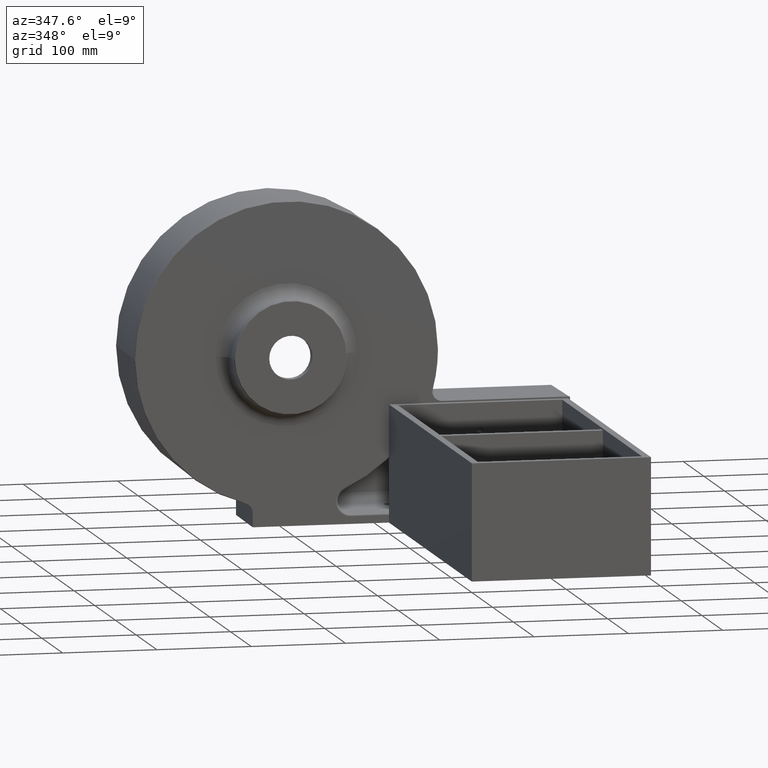
[diagram: clean part render]
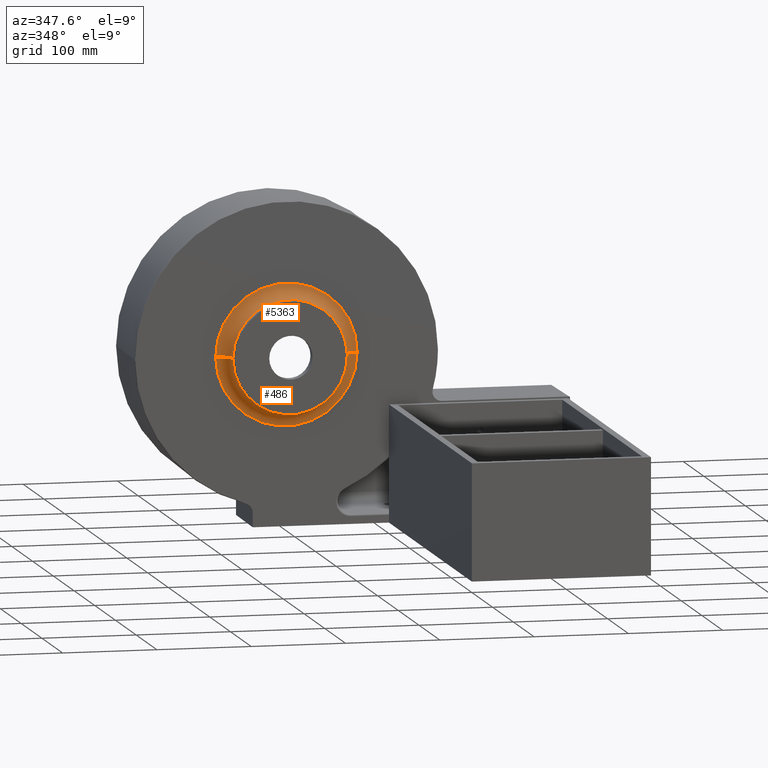
[diagram: same view with one multi-face feature highlighted, each face labeled with its STEP entity id]
A machine part, auxiliary view. The highlighted faces form ONE feature: a constant-radius fillet chain: 2 tangent blend faces with common blend radius 15 mm. The faces share edges in the B-rep.
Their STEP definitions:
[1] entity #5363 (Torus):
#460 = CARTESIAN_POINT ( 'NONE',  ( -108.7417837622144816, 384.9999000000000251, 55.99999999999999289 ) ) ;
#502 = ORIENTED_EDGE ( 'NONE', *, *, #2713, .T. ) ;
#630 = VERTEX_POINT ( 'NONE', #1019 ) ;
#841 = DIRECTION ( 'NONE',  ( -1.000000000000000000, -1.214623636765614367E-16, 0.0000000000000000000 ) ) ;
#860 = TOROIDAL_SURFACE ( 'NONE', #3254, 75.00000000000004263, 15.00000000000000000 ) ;
#886 = EDGE_CURVE ( 'NONE', #2505, #3163, #3009, .T. ) ;
#1019 = CARTESIAN_POINT ( 'NONE',  ( -33.74178376221443898, 399.9998999999999683, 56.00000000000000000 ) ) ;
#1053 = ORIENTED_EDGE ( 'NONE', *, *, #886, .T. ) ;
#1106 = AXIS2_PLACEMENT_3D ( 'NONE', #3055, #4366, #4795 ) ;
#1363 = CARTESIAN_POINT ( 'NONE',  ( -48.74178376221443898, 384.9999000000000251, 56.00000000000000000 ) ) ;
#1500 = DIRECTION ( 'NONE',  ( -1.214623636765614367E-16, 1.000000000000000000, -0.0000000000000000000 ) ) ;
#1696 = ORIENTED_EDGE ( 'NONE', *, *, #3068, .F. ) ;
#2014 = EDGE_CURVE ( 'NONE', #2505, #630, #4040, .T. ) ;
#2085 = DIRECTION ( 'NONE',  ( -1.000000000000000000, 0.0000000000000000000, 0.0000000000000000000 ) ) ;
#2092 = VERTEX_POINT ( 'NONE', #1363 ) ;
#2505 = VERTEX_POINT ( 'NONE', #5312 ) ;
#2614 = CARTESIAN_POINT ( 'NONE',  ( -168.7417837622145100, 384.9999000000000251, 55.99999999999999289 ) ) ;
#2713 = EDGE_CURVE ( 'NONE', #3163, #2092, #4445, .T. ) ;
#2821 = DIRECTION ( 'NONE',  ( -1.000000000000000000, 0.0000000000000000000, 0.0000000000000000000 ) ) ;
#2945 = CARTESIAN_POINT ( 'NONE',  ( -183.7417837622145100, 384.9999000000000251, 55.99999999999999289 ) ) ;
#2996 = FACE_OUTER_BOUND ( 'NONE', #4508, .T. ) ;
#3009 = CIRCLE ( 'NONE', #4928, 15.00000000000001421 ) ;
#3055 = CARTESIAN_POINT ( 'NONE',  ( -108.7417837622144816, 399.9998999999999683, 55.99999999999999289 ) ) ;
#3068 = EDGE_CURVE ( 'NONE', #630, #2092, #3467, .T. ) ;
#3163 = VERTEX_POINT ( 'NONE', #2614 ) ;
#3170 = AXIS2_PLACEMENT_3D ( 'NONE', #5430, #1500, #2821 ) ;
#3254 = AXIS2_PLACEMENT_3D ( 'NONE', #460, #5309, #841 ) ;
#3425 = DIRECTION ( 'NONE',  ( -1.224646799147353207E-16, -1.487484948933726914E-32, 1.000000000000000000 ) ) ;
#3467 = CIRCLE ( 'NONE', #4196, 15.00000000000000000 ) ;
#3688 = CARTESIAN_POINT ( 'NONE',  ( -33.74178376221443898, 384.9999000000000251, 56.00000000000000000 ) ) ;
#4040 = CIRCLE ( 'NONE', #1106, 75.00000000000002842 ) ;
#4196 = AXIS2_PLACEMENT_3D ( 'NONE', #3688, #3425, #4277 ) ;
#4277 = DIRECTION ( 'NONE',  ( 1.000000000000000000, 0.0000000000000000000, 0.0000000000000000000 ) ) ;
#4366 = DIRECTION ( 'NONE',  ( -1.214623636765614367E-16, 1.000000000000000000, -0.0000000000000000000 ) ) ;
#4445 = CIRCLE ( 'NONE', #3170, 60.00000000000004263 ) ;
#4508 = EDGE_LOOP ( 'NONE', ( #1696, #4523, #1053, #502 ) ) ;
#4523 = ORIENTED_EDGE ( 'NONE', *, *, #2014, .F. ) ;
#4687 = DIRECTION ( 'NONE',  ( 0.0000000000000000000, -0.0000000000000000000, -1.000000000000000000 ) ) ;
#4795 = DIRECTION ( 'NONE',  ( -1.000000000000000000, 0.0000000000000000000, 0.0000000000000000000 ) ) ;
#4928 = AXIS2_PLACEMENT_3D ( 'NONE', #2945, #4687, #2085 ) ;
#5309 = DIRECTION ( 'NONE',  ( -1.214623636765614367E-16, 1.000000000000000000, -0.0000000000000000000 ) ) ;
#5312 = CARTESIAN_POINT ( 'NONE',  ( -183.7417837622145100, 399.9998999999999683, 55.99999999999999289 ) ) ;
#5363 = ADVANCED_FACE ( 'NONE', ( #2996 ), #860, .F. ) ;
#5430 = CARTESIAN_POINT ( 'NONE',  ( -108.7417837622144816, 384.9999000000000251, 55.99999999999999289 ) ) ;
[2] entity #486 (Torus):
#146 = EDGE_LOOP ( 'NONE', ( #3186, #1149, #1803, #2827 ) ) ;
#229 = AXIS2_PLACEMENT_3D ( 'NONE', #1272, #5226, #4768 ) ;
#486 = ADVANCED_FACE ( 'NONE', ( #1709 ), #4459, .F. ) ;
#630 = VERTEX_POINT ( 'NONE', #1019 ) ;
#859 = DIRECTION ( 'NONE',  ( -1.000000000000000000, 0.0000000000000000000, 0.0000000000000000000 ) ) ;
#886 = EDGE_CURVE ( 'NONE', #2505, #3163, #3009, .T. ) ;
#1019 = CARTESIAN_POINT ( 'NONE',  ( -33.74178376221443898, 399.9998999999999683, 56.00000000000000000 ) ) ;
#1149 = ORIENTED_EDGE ( 'NONE', *, *, #3068, .T. ) ;
#1225 = DIRECTION ( 'NONE',  ( -1.000000000000000000, -1.214623636765614367E-16, 0.0000000000000000000 ) ) ;
#1272 = CARTESIAN_POINT ( 'NONE',  ( -108.7417837622144816, 384.9999000000000251, 55.99999999999999289 ) ) ;
#1363 = CARTESIAN_POINT ( 'NONE',  ( -48.74178376221443898, 384.9999000000000251, 56.00000000000000000 ) ) ;
#1709 = FACE_OUTER_BOUND ( 'NONE', #146, .T. ) ;
#1803 = ORIENTED_EDGE ( 'NONE', *, *, #5416, .T. ) ;
#2085 = DIRECTION ( 'NONE',  ( -1.000000000000000000, 0.0000000000000000000, 0.0000000000000000000 ) ) ;
#2092 = VERTEX_POINT ( 'NONE', #1363 ) ;
#2505 = VERTEX_POINT ( 'NONE', #5312 ) ;
#2560 = DIRECTION ( 'NONE',  ( -1.214623636765614367E-16, 1.000000000000000000, -0.0000000000000000000 ) ) ;
#2614 = CARTESIAN_POINT ( 'NONE',  ( -168.7417837622145100, 384.9999000000000251, 55.99999999999999289 ) ) ;
#2643 = CARTESIAN_POINT ( 'NONE',  ( -108.7417837622144816, 399.9998999999999683, 55.99999999999999289 ) ) ;
#2827 = ORIENTED_EDGE ( 'NONE', *, *, #886, .F. ) ;
#2945 = CARTESIAN_POINT ( 'NONE',  ( -183.7417837622145100, 384.9999000000000251, 55.99999999999999289 ) ) ;
#2978 = DIRECTION ( 'NONE',  ( -1.214623636765614367E-16, 1.000000000000000000, -0.0000000000000000000 ) ) ;
#3009 = CIRCLE ( 'NONE', #4928, 15.00000000000001421 ) ;
#3068 = EDGE_CURVE ( 'NONE', #630, #2092, #3467, .T. ) ;
#3163 = VERTEX_POINT ( 'NONE', #2614 ) ;
#3186 = ORIENTED_EDGE ( 'NONE', *, *, #4105, .F. ) ;
#3425 = DIRECTION ( 'NONE',  ( -1.224646799147353207E-16, -1.487484948933726914E-32, 1.000000000000000000 ) ) ;
#3467 = CIRCLE ( 'NONE', #4196, 15.00000000000000000 ) ;
#3688 = CARTESIAN_POINT ( 'NONE',  ( -33.74178376221443898, 384.9999000000000251, 56.00000000000000000 ) ) ;
#4105 = EDGE_CURVE ( 'NONE', #630, #2505, #5545, .T. ) ;
#4196 = AXIS2_PLACEMENT_3D ( 'NONE', #3688, #3425, #4277 ) ;
#4277 = DIRECTION ( 'NONE',  ( 1.000000000000000000, 0.0000000000000000000, 0.0000000000000000000 ) ) ;
#4459 = TOROIDAL_SURFACE ( 'NONE', #5489, 75.00000000000004263, 15.00000000000000000 ) ;
#4520 = CIRCLE ( 'NONE', #229, 60.00000000000004263 ) ;
#4687 = DIRECTION ( 'NONE',  ( 0.0000000000000000000, -0.0000000000000000000, -1.000000000000000000 ) ) ;
#4715 = AXIS2_PLACEMENT_3D ( 'NONE', #2643, #2560, #859 ) ;
#4768 = DIRECTION ( 'NONE',  ( -1.000000000000000000, 0.0000000000000000000, 0.0000000000000000000 ) ) ;
#4928 = AXIS2_PLACEMENT_3D ( 'NONE', #2945, #4687, #2085 ) ;
#5226 = DIRECTION ( 'NONE',  ( -1.214623636765614367E-16, 1.000000000000000000, -0.0000000000000000000 ) ) ;
#5233 = CARTESIAN_POINT ( 'NONE',  ( -108.7417837622144816, 384.9999000000000251, 55.99999999999999289 ) ) ;
#5312 = CARTESIAN_POINT ( 'NONE',  ( -183.7417837622145100, 399.9998999999999683, 55.99999999999999289 ) ) ;
#5416 = EDGE_CURVE ( 'NONE', #2092, #3163, #4520, .T. ) ;
#5489 = AXIS2_PLACEMENT_3D ( 'NONE', #5233, #2978, #1225 ) ;
#5545 = CIRCLE ( 'NONE', #4715, 75.00000000000002842 ) ;